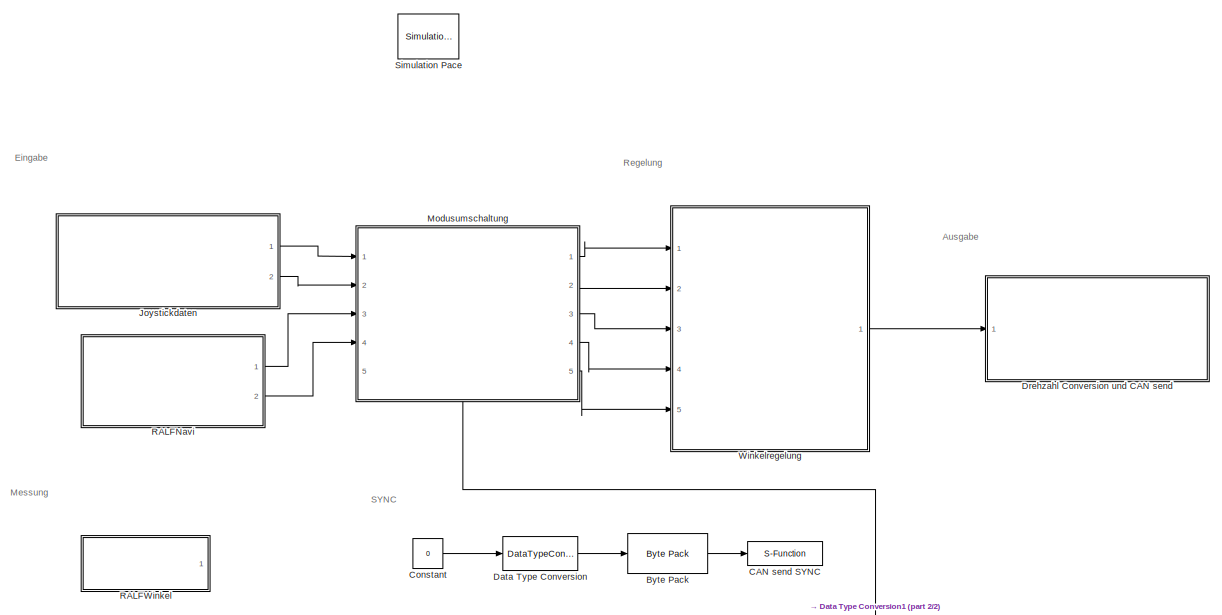
[diagram: root canvas - part 1/2, middle right region]
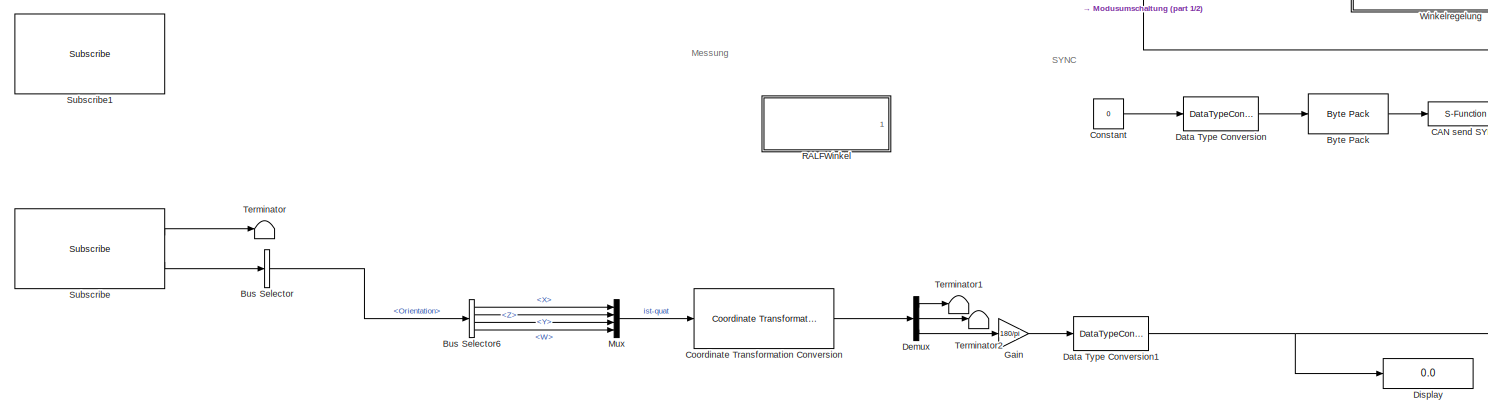
[diagram: root canvas - part 2/2, full width, bottom band]
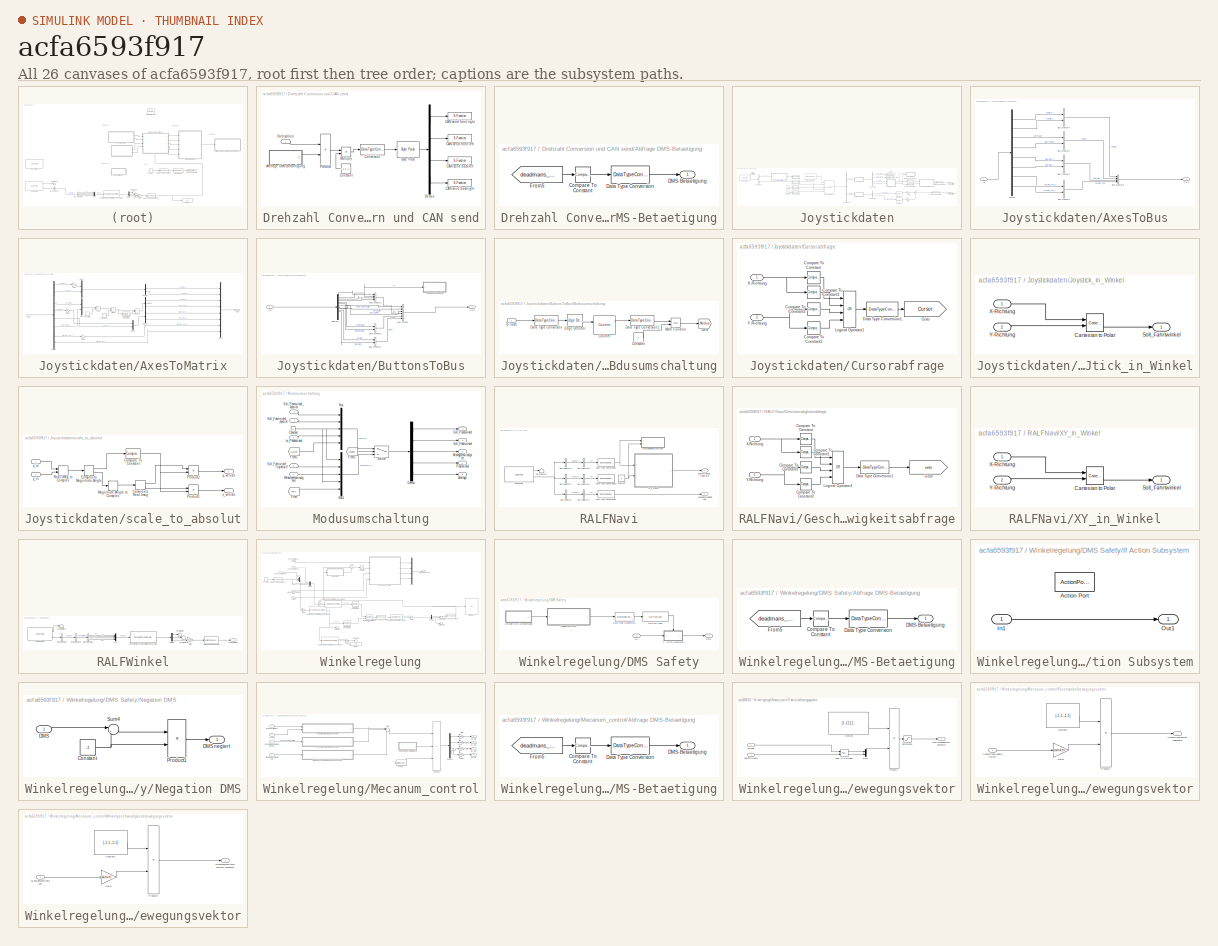
[diagram: thumbnail index - all 26 canvases of the model, root first then tree order]
MODEL slx_acfa6593f917
KIND model
CONFIG AbsTol = auto
CONFIG EnableMultiTasking = off
CONFIG FixedStep = 0.01
CONFIG InitFcn = init\n
CONFIG MaxStep = auto
CONFIG MinStep = auto
CONFIG RelTol = 1e-3
CONFIG SampleTimeConstraint = Unconstrained
CONFIG Solver = FixedStepAuto
CONFIG SolverName = FixedStepAuto
CONFIG StartTime = 0.0
CONFIG StopFcn = stop\n
CONFIG StopTime = inf
WORKSPACE source: mxarray member
WORKSPACE SL_ROS_VariableLengthArrays_MaxSizes: object (value not decoded)
BLOCK [BusSelector] Bus Selector
  OutputSignals = Pose.Pose.Orientation
  Ports = [1, 1]
BLOCK [BusSelector] Bus Selector6
  OutputSignals = X,Y,Z,W
  Ports = [1, 4]
BLOCK [Reference] Byte Pack  REF=etargetslib/Byte Pack
  Ports = [1, 1]
  SourceBlock = etargetslib/Byte Pack
  SourceProductBaseCode = ME
  SourceType = Byte pack
BLOCK [S-Function] CAN send SYNC
  EnableBusSupport = off
  FunctionName = CAN_send
  Parameters = Port,Identifier
  Ports = [1]
  SFcnIsStateOwnerBlock = off
  SFunctionDeploymentMode = off
  SFunctionModules = socketcan
BLOCK [Constant] Constant
  Value = 0
BLOCK [Reference] Coordinate Transformation Conversion  REF=robotcorelib/Coordinate Transformation Conversion
  Ports = [1, 1]
  SourceBlock = robotcorelib/Coordinate Transformation Conversion
  SourceProductBaseCode = NV,RO,RR
  SourceType = robotics.slcore.internal.block.CoordinateTransformationConversion
BLOCK [DataTypeConversion] Data Type Conversion
  OutDataTypeStr = int16
  RndMeth = Floor
  SaturateOnIntegerOverflow = off
BLOCK [DataTypeConversion] Data Type Conversion1
  OutDataTypeStr = single
  RndMeth = Floor
  SaturateOnIntegerOverflow = off
BLOCK [Demux] Demux
  Outputs = 3
  Ports = [1, 3]
BLOCK [Display] Display
  Decimation = 1
  Ports = [1]
BLOCK [SubSystem] Drehzahl Conversion und CAN send
  Ports = [1]
  RequestExecContextInheritance = off
BLOCK [SubSystem] Drehzahl Conversion und CAN send/Abfrage DMS-Betaetigung
  Ports = [0, 1]
  RequestExecContextInheritance = off
BLOCK [Reference] Drehzahl Conversion und CAN send/Abfrage DMS-Betaetigung/Compare To Constant  REF=simulink/Logic and Bit
Operations/Compare
To Constant
  Ports = [1, 1]
  SourceBlock = simulink/Logic and Bit\nOperations/Compare\nTo Constant
  SourceProductBaseCode = SL
  SourceType = Compare To Constant
BLOCK [Outport] Drehzahl Conversion und CAN send/Abfrage DMS-Betaetigung/DMS-Betaetigung 
  VectorParamsAs1DForOutWhenUnconnected = off
BLOCK [DataTypeConversion] Drehzahl Conversion und CAN send/Abfrage DMS-Betaetigung/Data Type Conversion
  OutDataTypeStr = single
  RndMeth = Floor
  SaturateOnIntegerOverflow = off
BLOCK [From] Drehzahl Conversion und CAN send/Abfrage DMS-Betaetigung/From5
  GotoTag = deadmans_switch
  TagVisibility = global
BLOCK [Reference] Drehzahl Conversion und CAN send/Byte Pack  REF=etargetslib/Byte Pack
  Ports = [1, 1]
  SourceBlock = etargetslib/Byte Pack
  SourceProductBaseCode = ME
  SourceType = Byte pack
BLOCK [S-Function] Drehzahl Conversion und CAN send/CAN send back left
  EnableBusSupport = off
  FunctionName = CAN_send
  Parameters = Port,Identifier
  Ports = [1]
  SFcnIsStateOwnerBlock = off
  SFunctionDeploymentMode = off
  SFunctionModules = socketcan
BLOCK [S-Function] Drehzahl Conversion und CAN send/CAN send back right
  EnableBusSupport = off
  FunctionName = CAN_send
  Parameters = Port,Identifier
  Ports = [1]
  SFcnIsStateOwnerBlock = off
  SFunctionDeploymentMode = off
  SFunctionModules = socketcan
BLOCK [S-Function] Drehzahl Conversion und CAN send/CAN send front left
  EnableBusSupport = off
  FunctionName = CAN_send
  Parameters = Port,Identifier
  Ports = [1]
  SFcnIsStateOwnerBlock = off
  SFunctionDeploymentMode = off
  SFunctionModules = socketcan
BLOCK [S-Function] Drehzahl Conversion und CAN send/CAN send front right
  EnableBusSupport = off
  FunctionName = CAN_send
  Parameters = Port,Identifier
  Ports = [1]
  SFcnIsStateOwnerBlock = off
  SFunctionDeploymentMode = off
  SFunctionModules = socketcan
BLOCK [Constant] Drehzahl Conversion und CAN send/Constant
  Value = [-1;1;-1;1]
BLOCK [DataTypeConversion] Drehzahl Conversion und CAN send/Conversion 
  OutDataTypeStr = int16
  RndMeth = Floor
  SaturateOnIntegerOverflow = off
BLOCK [Demux] Drehzahl Conversion und CAN send/Demux
  Ports = [1, 4]
BLOCK [Inport] Drehzahl Conversion und CAN send/Drehzahlen 
BLOCK [Product] Drehzahl Conversion und CAN send/Multiply
  Ports = [2, 1]
BLOCK [Product] Drehzahl Conversion und CAN send/Product
  Ports = [2, 1]
BLOCK [Gain] Gain
  Gain = 180/pi
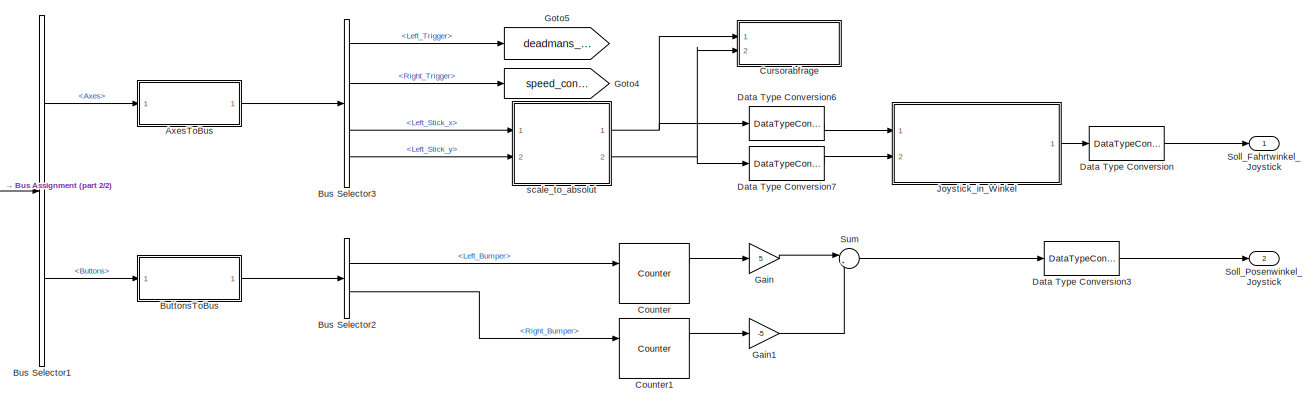
[diagram: Joystickdaten - part 1/2, right side, full height]
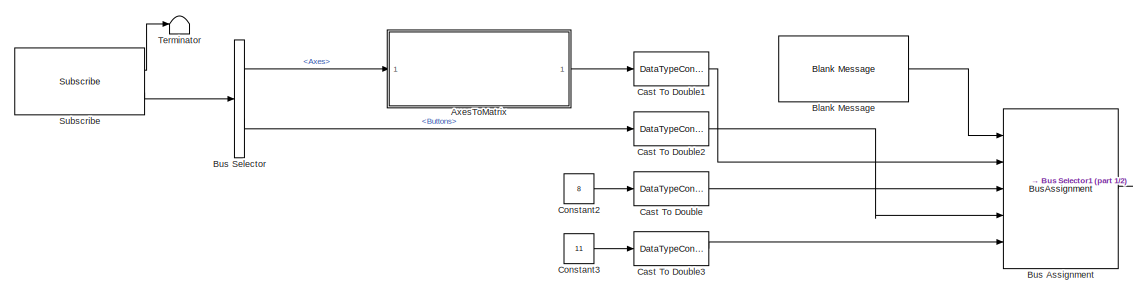
[diagram: Joystickdaten - part 2/2, middle left region]
BLOCK [SubSystem] Joystickdaten
  Ports = [0, 2]
  RequestExecContextInheritance = off
BLOCK [SubSystem] Joystickdaten/AxesToBus
  Ports = [1, 1]
  RequestExecContextInheritance = off
BLOCK [BusCreator] Joystickdaten/AxesToBus/Bus Creator4
  DisplayOption = bar
  InheritFromInputs = on
  Inputs = 2
  Ports = [2, 1]
BLOCK [BusCreator] Joystickdaten/AxesToBus/Bus Creator5
  DisplayOption = bar
  InheritFromInputs = on
  Inputs = 2
  Ports = [2, 1]
BLOCK [BusCreator] Joystickdaten/AxesToBus/Bus Creator6
  DisplayOption = bar
  InheritFromInputs = on
  Inputs = 2
  Ports = [2, 1]
BLOCK [BusCreator] Joystickdaten/AxesToBus/Bus Creator7
  DisplayOption = bar
  InheritFromInputs = on
  Inputs = 2
  Ports = [2, 1]
BLOCK [BusCreator] Joystickdaten/AxesToBus/Bus Creator8
  DisplayOption = bar
  InheritFromInputs = on
  Inputs = 4
  Ports = [4, 1]
BLOCK [Demux] Joystickdaten/AxesToBus/Demux
  Outputs = 8
  Ports = [1, 8]
BLOCK [Inport] Joystickdaten/AxesToBus/In1
BLOCK [Outport] Joystickdaten/AxesToBus/Out1
  VectorParamsAs1DForOutWhenUnconnected = off
BLOCK [SubSystem] Joystickdaten/AxesToMatrix
  Ports = [1, 1]
  RequestExecContextInheritance = off
BLOCK [Sum] Joystickdaten/AxesToMatrix/Add
  IconShape = rectangular
  Inputs = +-
  Ports = [2, 1]
BLOCK [Inport] Joystickdaten/AxesToMatrix/Axes
BLOCK [Reference] Joystickdaten/AxesToMatrix/Compare To Constant1  REF=simulink/Logic and Bit
Operations/Compare
To Constant
  Ports = [1, 1]
  SourceBlock = simulink/Logic and Bit\nOperations/Compare\nTo Constant
  SourceProductBaseCode = SL
  SourceType = Compare To Constant
BLOCK [Constant] Joystickdaten/AxesToMatrix/Constant
BLOCK [Constant] Joystickdaten/AxesToMatrix/Constant1
  Value = -2
BLOCK [Demux] Joystickdaten/AxesToMatrix/Demux
  Outputs = 8
  Ports = [1, 8]
BLOCK [Demux] Joystickdaten/AxesToMatrix/Demux2
  Outputs = 2
  Ports = [1, 2]
BLOCK [Demux] Joystickdaten/AxesToMatrix/Demux3
  Outputs = 2
  Ports = [1, 2]
BLOCK [Demux] Joystickdaten/AxesToMatrix/Demux4
  Outputs = 2
  Ports = [1, 2]
BLOCK [Product] Joystickdaten/AxesToMatrix/Divide
  Inputs = */
  Ports = [2, 1]
BLOCK [Gain] Joystickdaten/AxesToMatrix/Gain
  Gain = -1
BLOCK [Gain] Joystickdaten/AxesToMatrix/Gain1
  Gain = -1
BLOCK [Gain] Joystickdaten/AxesToMatrix/Gain2
  Gain = -1
BLOCK [Mux] Joystickdaten/AxesToMatrix/Mux
  DisplayOption = bar
  Inputs = 2
  Ports = [2, 1]
BLOCK [Mux] Joystickdaten/AxesToMatrix/Mux1
  DisplayOption = bar
  Inputs = 2
  Ports = [2, 1]
BLOCK [Mux] Joystickdaten/AxesToMatrix/Mux2
  DisplayOption = bar
  Inputs = 2
  Ports = [2, 1]
BLOCK [Mux] Joystickdaten/AxesToMatrix/Mux4
  DisplayOption = bar
  Inputs = 8
  Ports = [8, 1]
BLOCK [Outport] Joystickdaten/AxesToMatrix/Out3
  VectorParamsAs1DForOutWhenUnconnected = off
BLOCK [Product] Joystickdaten/AxesToMatrix/Product1
  OutDataTypeStr = single
  Ports = [2, 1]
BLOCK [Reference] Joystickdaten/Blank Message  REF=robotlib/Blank Message
  Ports = [0, 1]
  SourceBlock = robotlib/Blank Message
  SourceProductBaseCode = RR
  SourceType = ROS Blank Message
BLOCK [BusAssignment] Joystickdaten/Bus Assignment
  AssignedSignals = Axes,Axes_SL_Info.CurrentLength,Buttons,Buttons_SL_Info.CurrentLength
  Ports = [5, 1]
BLOCK [BusSelector] Joystickdaten/Bus Selector
  OutputSignals = Axes,Buttons
  Ports = [1, 2]
BLOCK [BusSelector] Joystickdaten/Bus Selector1
  OutputSignals = Axes,Buttons
  Ports = [1, 2]
BLOCK [BusSelector] Joystickdaten/Bus Selector2
  OutputSignals = Bumper.Left_Bumper,Bumper.Right_Bumper
  Ports = [1, 2]
BLOCK [BusSelector] Joystickdaten/Bus Selector3
  OutputSignals = Trigger.Left_Trigger,Trigger.Right_Trigger,Left_Stick.Left_Stick_x,Left_Stick.Left_Stick_y
  Ports = [1, 4]
BLOCK [SubSystem] Joystickdaten/ButtonsToBus
  Ports = [1, 1]
  RequestExecContextInheritance = off
BLOCK [BusCreator] Joystickdaten/ButtonsToBus/Bus Creator
  DisplayOption = bar
  InheritFromInputs = on
  Inputs = 6
  Ports = [6, 1]
BLOCK [BusCreator] Joystickdaten/ButtonsToBus/Bus Creator1
  DisplayOption = bar
  InheritFromInputs = on
  Inputs = 4
  Ports = [4, 1]
BLOCK [BusCreator] Joystickdaten/ButtonsToBus/Bus Creator2
  DisplayOption = bar
  InheritFromInputs = on
  Inputs = 2
  Ports = [2, 1]
BLOCK [BusCreator] Joystickdaten/ButtonsToBus/Bus Creator3
  DisplayOption = bar
  InheritFromInputs = on
  Inputs = 2
  Ports = [2, 1]
BLOCK [Demux] Joystickdaten/ButtonsToBus/Demux1
  Outputs = 15
  Ports = [1, 15]
BLOCK [Inport] Joystickdaten/ButtonsToBus/In1
BLOCK [SubSystem] Joystickdaten/ButtonsToBus/Modusumschaltung
  Ports = [1]
  RequestExecContextInheritance = off
BLOCK [Inport] Joystickdaten/ButtonsToBus/Modusumschaltung/B-Taste
BLOCK [Constant] Joystickdaten/ButtonsToBus/Modusumschaltung/Constant
  OutDataTypeStr = single
  Value = 2
BLOCK [Reference] Joystickdaten/ButtonsToBus/Modusumschaltung/Counter  REF=dspswit3/Counter
  Ports = [2, 2]
  SourceBlock = dspswit3/Counter
  SourceProductBaseCode = DS
  SourceType = Counter
BLOCK [DataTypeConversion] Joystickdaten/ButtonsToBus/Modusumschaltung/Data Type Conversion
  OutDataTypeStr = single
  RndMeth = Floor
  SaturateOnIntegerOverflow = off
BLOCK [DataTypeConversion] Joystickdaten/ButtonsToBus/Modusumschaltung/Data Type Conversion1
  OutDataTypeStr = single
  RndMeth = Floor
  SaturateOnIntegerOverflow = off
BLOCK [Reference] Joystickdaten/ButtonsToBus/Modusumschaltung/Edge Detector  REF=dspswit3/Edge
Detector
  Ports = [1, 1]
  SourceBlock = dspswit3/Edge\nDetector
  SourceProductBaseCode = DS
  SourceType = Edge Detector
  UserDataPersistent = on
BLOCK [Goto] Joystickdaten/ButtonsToBus/Modusumschaltung/Goto
  GotoTag = Modus
  TagVisibility = global
BLOCK [Math] Joystickdaten/ButtonsToBus/Modusumschaltung/Math Function
  Operator = mod
  Ports = [2, 1]
  SignedPower = on
BLOCK [Outport] Joystickdaten/ButtonsToBus/Out1
  VectorParamsAs1DForOutWhenUnconnected = off
BLOCK [DataTypeConversion] Joystickdaten/Cast To Double
  OutDataTypeStr = uint32
  RndMeth = Floor
  SaturateOnIntegerOverflow = off
BLOCK [DataTypeConversion] Joystickdaten/Cast To Double1
  OutDataTypeStr = single
  RndMeth = Floor
  SaturateOnIntegerOverflow = off
BLOCK [DataTypeConversion] Joystickdaten/Cast To Double2
  OutDataTypeStr = int32
  RndMeth = Floor
  SaturateOnIntegerOverflow = off
BLOCK [DataTypeConversion] Joystickdaten/Cast To Double3
  OutDataTypeStr = uint32
  RndMeth = Floor
  SaturateOnIntegerOverflow = off
BLOCK [Constant] Joystickdaten/Constant2
  Value = 8
BLOCK [Constant] Joystickdaten/Constant3
  Value = 11
BLOCK [Reference] Joystickdaten/Counter  REF=dspswit3/Counter
  Ports = [2, 2]
  SourceBlock = dspswit3/Counter
  SourceProductBaseCode = DS
  SourceType = Counter
BLOCK [Reference] Joystickdaten/Counter1  REF=dspswit3/Counter
  Ports = [2, 2]
  SourceBlock = dspswit3/Counter
  SourceProductBaseCode = DS
  SourceType = Counter
BLOCK [SubSystem] Joystickdaten/Cursorabfrage
  Ports = [2]
  RequestExecContextInheritance = off
BLOCK [Reference] Joystickdaten/Cursorabfrage/Compare To Constant  REF=simulink/Logic and Bit
Operations/Compare
To Constant
  Ports = [1, 1]
  SourceBlock = simulink/Logic and Bit\nOperations/Compare\nTo Constant
  SourceProductBaseCode = SL
  SourceType = Compare To Constant
BLOCK [Reference] Joystickdaten/Cursorabfrage/Compare To Constant1  REF=simulink/Logic and Bit
Operations/Compare
To Constant
  Ports = [1, 1]
  SourceBlock = simulink/Logic and Bit\nOperations/Compare\nTo Constant
  SourceProductBaseCode = SL
  SourceType = Compare To Constant
BLOCK [Reference] Joystickdaten/Cursorabfrage/Compare To Constant2  REF=simulink/Logic and Bit
Operations/Compare
To Constant
  Ports = [1, 1]
  SourceBlock = simulink/Logic and Bit\nOperations/Compare\nTo Constant
  SourceProductBaseCode = SL
  SourceType = Compare To Constant
BLOCK [Reference] Joystickdaten/Cursorabfrage/Compare To Constant3  REF=simulink/Logic and Bit
Operations/Compare
To Constant
  Ports = [1, 1]
  SourceBlock = simulink/Logic and Bit\nOperations/Compare\nTo Constant
  SourceProductBaseCode = SL
  SourceType = Compare To Constant
BLOCK [DataTypeConversion] Joystickdaten/Cursorabfrage/Data Type Conversion1
  OutDataTypeStr = single
  RndMeth = Floor
  SaturateOnIntegerOverflow = off
BLOCK [Goto] Joystickdaten/Cursorabfrage/Goto
  GotoTag = Cursor
  TagVisibility = global
BLOCK [Logic] Joystickdaten/Cursorabfrage/Logical Operator1
  AllPortsSameDT = off
  Inputs = 4
  Operator = OR
  OutDataTypeStr = boolean
  Ports = [4, 1]
BLOCK [Inport] Joystickdaten/Cursorabfrage/X-Richtung
BLOCK [Inport] Joystickdaten/Cursorabfrage/Y-Richtung
  Port = 2
BLOCK [DataTypeConversion] Joystickdaten/Data Type Conversion
  OutDataTypeStr = single
  RndMeth = Floor
  SaturateOnIntegerOverflow = off
BLOCK [DataTypeConversion] Joystickdaten/Data Type Conversion3
  OutDataTypeStr = single
  RndMeth = Floor
  SaturateOnIntegerOverflow = off
BLOCK [DataTypeConversion] Joystickdaten/Data Type Conversion6
  OutDataTypeStr = double
  RndMeth = Floor
  SaturateOnIntegerOverflow = off
BLOCK [DataTypeConversion] Joystickdaten/Data Type Conversion7
  OutDataTypeStr = double
  RndMeth = Floor
  SaturateOnIntegerOverflow = off
BLOCK [Gain] Joystickdaten/Gain
  Gain = 5
BLOCK [Gain] Joystickdaten/Gain1
  Gain = -5
BLOCK [Goto] Joystickdaten/Goto4
  GotoTag = speed_control
  TagVisibility = global
BLOCK [Goto] Joystickdaten/Goto5
  GotoTag = deadmans_switch
  TagVisibility = global
BLOCK [SubSystem] Joystickdaten/Joystick_in_Winkel
  Ports = [2, 1]
  RequestExecContextInheritance = off
BLOCK [Reference] Joystickdaten/Joystick_in_Winkel/Cartesian to Polar  REF=simulink_extras/Transformations/Cartesian to
Polar
  Ports = [2, 2]
  SourceBlock = simulink_extras/Transformations/Cartesian to\nPolar
  SourceProductBaseCode = SL
  SourceType = Cart2Polar
BLOCK [Outport] Joystickdaten/Joystick_in_Winkel/Soll_Fahrtwinkel
  VectorParamsAs1DForOutWhenUnconnected = off
BLOCK [Inport] Joystickdaten/Joystick_in_Winkel/X-Richtung
BLOCK [Inport] Joystickdaten/Joystick_in_Winkel/Y-Richtung
  Port = 2
BLOCK [Outport] Joystickdaten/Soll_Fahrtwinkel_Joystick
  VectorParamsAs1DForOutWhenUnconnected = off
BLOCK [Outport] Joystickdaten/Soll_Posenwinkel_Joystick
  Port = 2
  VectorParamsAs1DForOutWhenUnconnected = off
BLOCK [Reference] Joystickdaten/Subscribe  REF=robotlib/Subscribe
  Ports = [0, 2]
  SourceBlock = robotlib/Subscribe
  SourceProductBaseCode = RR
  SourceType = ROS Subscribe
BLOCK [Sum] Joystickdaten/Sum
  Inputs = |++
  Ports = [2, 1]
BLOCK [Terminator] Joystickdaten/Terminator
BLOCK [SubSystem] Joystickdaten/scale_to_absolut
  Ports = [2, 2]
  RequestExecContextInheritance = off
BLOCK [Reference] Joystickdaten/scale_to_absolut/Compare To Constant  REF=simulink/Logic and Bit
Operations/Compare
To Constant
  Ports = [1, 1]
  SourceBlock = simulink/Logic and Bit\nOperations/Compare\nTo Constant
  SourceProductBaseCode = SL
  SourceType = Compare To Constant
BLOCK [ComplexToMagnitudeAngle] Joystickdaten/scale_to_absolut/Complex to Magnitude-Angle
  Ports = [1, 2]
BLOCK [ComplexToRealImag] Joystickdaten/scale_to_absolut/Complex to Real-Imag
  Ports = [1, 2]
BLOCK [MagnitudeAngleToComplex] Joystickdaten/scale_to_absolut/Magnitude-Angle to Complex
  ConstantPart = 1
  Input = Angle
  Ports = [1, 1]
BLOCK [Product] Joystickdaten/scale_to_absolut/Product1
  Ports = [2, 1]
BLOCK [Product] Joystickdaten/scale_to_absolut/Product2
  Ports = [2, 1]
BLOCK [RealImagToComplex] Joystickdaten/scale_to_absolut/Real-Imag to Complex
  Ports = [2, 1]
BLOCK [Inport] Joystickdaten/scale_to_absolut/x_in
BLOCK [Outport] Joystickdaten/scale_to_absolut/x_vehicle
  VectorParamsAs1DForOutWhenUnconnected = off
BLOCK [Inport] Joystickdaten/scale_to_absolut/y_in
  Port = 2
BLOCK [Outport] Joystickdaten/scale_to_absolut/y_vehicle
  Port = 2
  VectorParamsAs1DForOutWhenUnconnected = off
BLOCK [SubSystem] Modusumschaltung
  PortSchema = {"entries":[{"content":{"sides":[{"content":{"connectorIds":["In1","In2","In3","In4"]},"type":"ConnectorPlacement.EquallySpacedRectSide","uuid":"4e6e5472-925b-44c8-a721-581e406655e4"},{"content":{"connectorIds":["Out1","Out2","Out3","Out4","Out5"],"side":"RIGHT"},"type":"ConnectorPlacement.EquallySpacedRectSide","uuid":"8f69ce23-dada-4a8a-8f27-31ddbd1227c0"},{"content":{"connectorIds":[],"side":"T...<+437ch>
  Ports = [5, 5]
  RequestExecContextInheritance = off
BLOCK [Outport] Modusumschaltung/Abfrage
  Port = 5
  VectorParamsAs1DForOutWhenUnconnected = off
BLOCK [Constant] Modusumschaltung/Constant
  OutDataTypeStr = single
  Value = 0
BLOCK [Demux] Modusumschaltung/Demux
  Outputs = 5
  Ports = [1, 5]
BLOCK [From] Modusumschaltung/From
  GotoTag = velo
  TagVisibility = global
BLOCK [From] Modusumschaltung/From1
  GotoTag = Cursor
  TagVisibility = global
BLOCK [From] Modusumschaltung/From2
  GotoTag = Modus
  TagVisibility = global
BLOCK [Inport] Modusumschaltung/Ist_Posenwinkel
  Port = 5
BLOCK [Mux] Modusumschaltung/Mux
  DisplayOption = bar
  Inputs = 5
  Ports = [5, 1]
BLOCK [Mux] Modusumschaltung/Mux1
  DisplayOption = bar
  Inputs = 5
  Ports = [5, 1]
BLOCK [Outport] Modusumschaltung/Posenwinkel
  Port = 4
  VectorParamsAs1DForOutWhenUnconnected = off
BLOCK [Outport] Modusumschaltung/Soll_Fahrtwinkel
  Port = 2
  VectorParamsAs1DForOutWhenUnconnected = off
BLOCK [Inport] Modusumschaltung/Soll_Fahrtwinkel_Joystick
BLOCK [Inport] Modusumschaltung/Soll_Fahrtwinkel_Trajektorie
  Port = 3
BLOCK [Outport] Modusumschaltung/Soll_Posenwinkel
  VectorParamsAs1DForOutWhenUnconnected = off
BLOCK [Inport] Modusumschaltung/Soll_Posenwinkel_Joystick
  Port = 2
BLOCK [Switch] Modusumschaltung/Switch
  Criteria = u2 > Threshold
  InputSameDT = off
  SaturateOnIntegerOverflow = off
BLOCK [Outport] Modusumschaltung/WInkegeschwindigkeit
  Port = 3
  VectorParamsAs1DForOutWhenUnconnected = off
BLOCK [Inport] Modusumschaltung/WInkelgeschwindigkeit 
  Port = 4
BLOCK [Mux] Mux
  DisplayOption = bar
  Ports = [4, 1]
BLOCK [SubSystem] RALFNavi
  Ports = [0, 2]
  RequestExecContextInheritance = off
BLOCK [BusSelector] RALFNavi/Bus Selector
  OutputSignals = Angular
  Ports = [1, 1]
BLOCK [BusSelector] RALFNavi/Bus Selector1
  OutputSignals = Z
  Ports = [1, 1]
BLOCK [BusSelector] RALFNavi/Bus Selector2
  OutputSignals = Linear
  Ports = [1, 1]
BLOCK [BusSelector] RALFNavi/Bus Selector3
  OutputSignals = X
  Ports = [1, 1]
BLOCK [BusSelector] RALFNavi/Bus Selector7
  OutputSignals = Linear
  Ports = [1, 1]
BLOCK [BusSelector] RALFNavi/Bus Selector8
  OutputSignals = X
  Ports = [1, 1]
BLOCK [Constant] RALFNavi/Constant
  OutDataTypeStr = single
  Value = 0
BLOCK [DataTypeConversion] RALFNavi/Data Type Conversion1
  OutDataTypeStr = single
  RndMeth = Floor
  SaturateOnIntegerOverflow = off
BLOCK [DataTypeConversion] RALFNavi/Data Type Conversion2
  OutDataTypeStr = single
  RndMeth = Floor
  SaturateOnIntegerOverflow = off
BLOCK [DataTypeConversion] RALFNavi/Data Type Conversion3
  OutDataTypeStr = single
  RndMeth = Floor
  SaturateOnIntegerOverflow = off
BLOCK [SubSystem] RALFNavi/Geschwindigkeitsabfrage
  Ports = [2]
  RequestExecContextInheritance = off
BLOCK [Reference] RALFNavi/Geschwindigkeitsabfrage/Compare To Constant  REF=simulink/Logic and Bit
Operations/Compare
To Constant
  Ports = [1, 1]
  SourceBlock = simulink/Logic and Bit\nOperations/Compare\nTo Constant
  SourceProductBaseCode = SL
  SourceType = Compare To Constant
BLOCK [Reference] RALFNavi/Geschwindigkeitsabfrage/Compare To Constant1  REF=simulink/Logic and Bit
Operations/Compare
To Constant
  Ports = [1, 1]
  SourceBlock = simulink/Logic and Bit\nOperations/Compare\nTo Constant
  SourceProductBaseCode = SL
  SourceType = Compare To Constant
BLOCK [Reference] RALFNavi/Geschwindigkeitsabfrage/Compare To Constant2  REF=simulink/Logic and Bit
Operations/Compare
To Constant
  Ports = [1, 1]
  SourceBlock = simulink/Logic and Bit\nOperations/Compare\nTo Constant
  SourceProductBaseCode = SL
  SourceType = Compare To Constant
BLOCK [Reference] RALFNavi/Geschwindigkeitsabfrage/Compare To Constant3  REF=simulink/Logic and Bit
Operations/Compare
To Constant
  Ports = [1, 1]
  SourceBlock = simulink/Logic and Bit\nOperations/Compare\nTo Constant
  SourceProductBaseCode = SL
  SourceType = Compare To Constant
BLOCK [DataTypeConversion] RALFNavi/Geschwindigkeitsabfrage/Data Type Conversion1
  OutDataTypeStr = single
  RndMeth = Floor
  SaturateOnIntegerOverflow = off
BLOCK [Goto] RALFNavi/Geschwindigkeitsabfrage/Goto
  GotoTag = velo
  TagVisibility = global
BLOCK [Logic] RALFNavi/Geschwindigkeitsabfrage/Logical Operator1
  AllPortsSameDT = off
  Inputs = 4
  Operator = OR
  OutDataTypeStr = boolean
  Ports = [4, 1]
BLOCK [Inport] RALFNavi/Geschwindigkeitsabfrage/X-Richtung
BLOCK [Inport] RALFNavi/Geschwindigkeitsabfrage/Y-Richtung
  Port = 2
BLOCK [Outport] RALFNavi/Soll_Fahrtwinkel_Trajektorie
  VectorParamsAs1DForOutWhenUnconnected = off
BLOCK [Reference] RALFNavi/Subscribe  REF=robotlib/Subscribe
  Ports = [0, 2]
  SourceBlock = robotlib/Subscribe
  SourceProductBaseCode = RR
  SourceType = ROS Subscribe
BLOCK [Terminator] RALFNavi/Terminator3
BLOCK [Outport] RALFNavi/Winkelgeschwindigkeit 
  Port = 2
  VectorParamsAs1DForOutWhenUnconnected = off
BLOCK [SubSystem] RALFNavi/XY_in_Winkel
  Ports = [2, 1]
  RequestExecContextInheritance = off
BLOCK [Reference] RALFNavi/XY_in_Winkel/Cartesian to Polar  REF=simulink_extras/Transformations/Cartesian to
Polar
  Ports = [2, 2]
  SourceBlock = simulink_extras/Transformations/Cartesian to\nPolar
  SourceProductBaseCode = SL
  SourceType = Cart2Polar
BLOCK [Outport] RALFNavi/XY_in_Winkel/Soll_Fahrtwinkel
  VectorParamsAs1DForOutWhenUnconnected = off
BLOCK [Inport] RALFNavi/XY_in_Winkel/X-Richtung
BLOCK [Inport] RALFNavi/XY_in_Winkel/Y-Richtung
  Port = 2
BLOCK [SubSystem] RALFWinkel
  Commented = on
  Ports = [0, 1]
  RequestExecContextInheritance = off
BLOCK [BusSelector] RALFWinkel/Bus Selector4
  OutputSignals = Pose
  Ports = [1, 1]
BLOCK [BusSelector] RALFWinkel/Bus Selector5
  OutputSignals = Orientation
  Ports = [1, 1]
BLOCK [BusSelector] RALFWinkel/Bus Selector6
  OutputSignals = X,Y,Z,W
  Ports = [1, 4]
BLOCK [Reference] RALFWinkel/Coordinate Transformation Conversion  REF=robotcorelib/Coordinate Transformation Conversion
  Ports = [1, 1]
  SourceBlock = robotcorelib/Coordinate Transformation Conversion
  SourceProductBaseCode = NV,RO,RR
  SourceType = robotics.slcore.internal.block.CoordinateTransformationConversion
BLOCK [DataTypeConversion] RALFWinkel/Data Type Conversion
  OutDataTypeStr = single
  RndMeth = Floor
  SaturateOnIntegerOverflow = off
BLOCK [Demux] RALFWinkel/Demux
  Outputs = 3
  Ports = [1, 3]
BLOCK [Gain] RALFWinkel/Gain
  Gain = 180/pi
BLOCK [Mux] RALFWinkel/Mux
  DisplayOption = bar
  Ports = [4, 1]
BLOCK [Outport] RALFWinkel/Posenwinkel
  VectorParamsAs1DForOutWhenUnconnected = off
BLOCK [Reference] RALFWinkel/Subscribe1  REF=robotlib/Subscribe
  Ports = [0, 2]
  SourceBlock = robotlib/Subscribe
  SourceProductBaseCode = RR
  SourceType = ROS Subscribe
BLOCK [Terminator] RALFWinkel/Terminator
BLOCK [Terminator] RALFWinkel/Terminator1
BLOCK [Terminator] RALFWinkel/Terminator2
BLOCK [Reference] Simulation Pace  REF=aerolibanimutils/Simulation Pace
  AttributesFormatString = %<SleepMode>\n%<SimulationPace> sec/sec
  Ports = []
  SourceBlock = aerolibanimutils/Simulation Pace
  SourceProductBaseCode = AE
  SourceType = Simulation Pace
BLOCK [Reference] Subscribe  REF=robotlib/Subscribe
  Ports = [0, 2]
  SourceBlock = robotlib/Subscribe
  SourceProductBaseCode = RR
  SourceType = ROS Subscribe
BLOCK [Reference] Subscribe1  REF=robotlib/Subscribe
  Commented = on
  Ports = [0, 2]
  SourceBlock = robotlib/Subscribe
  SourceProductBaseCode = RR
  SourceType = ROS Subscribe
BLOCK [Terminator] Terminator
BLOCK [Terminator] Terminator1
BLOCK [Terminator] Terminator2
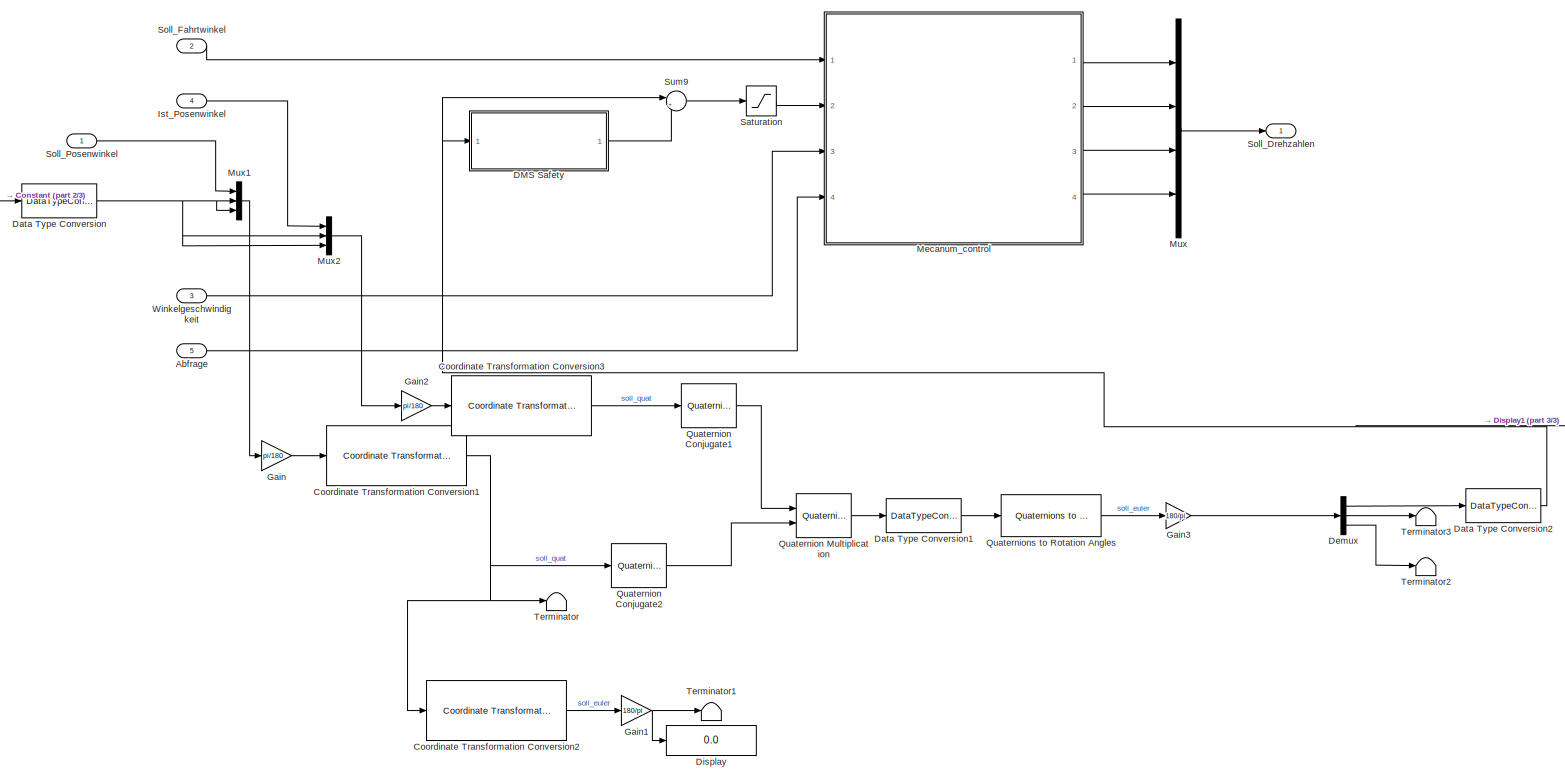
[diagram: Winkelregelung - part 1/3, most of the canvas]
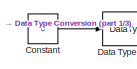
[diagram: Winkelregelung - part 2/3, top left region]
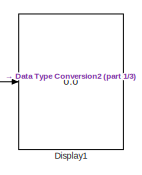
[diagram: Winkelregelung - part 3/3, middle right region]
BLOCK [SubSystem] Winkelregelung
  Ports = [5, 1]
  RequestExecContextInheritance = off
BLOCK [Inport] Winkelregelung/Abfrage 
  Port = 5
BLOCK [Constant] Winkelregelung/Constant
  Value = 0
BLOCK [Reference] Winkelregelung/Coordinate Transformation Conversion1  REF=robotcorelib/Coordinate Transformation Conversion
  Ports = [1, 1]
  SourceBlock = robotcorelib/Coordinate Transformation Conversion
  SourceProductBaseCode = NV,RO,RR
  SourceType = robotics.slcore.internal.block.CoordinateTransformationConversion
BLOCK [Reference] Winkelregelung/Coordinate Transformation Conversion2  REF=robotcorelib/Coordinate Transformation Conversion
  Ports = [1, 1]
  SourceBlock = robotcorelib/Coordinate Transformation Conversion
  SourceProductBaseCode = NV,RO,RR
  SourceType = robotics.slcore.internal.block.CoordinateTransformationConversion
BLOCK [Reference] Winkelregelung/Coordinate Transformation Conversion3  REF=robotcorelib/Coordinate Transformation Conversion
  Ports = [1, 1]
  SourceBlock = robotcorelib/Coordinate Transformation Conversion
  SourceProductBaseCode = NV,RO,RR
  SourceType = robotics.slcore.internal.block.CoordinateTransformationConversion
BLOCK [SubSystem] Winkelregelung/DMS Safety
  Ports = [1, 1]
  RequestExecContextInheritance = off
  ShowPortLabels = none
BLOCK [SubSystem] Winkelregelung/DMS Safety/Abfrage DMS-Betaetigung
  Ports = [0, 1]
  RequestExecContextInheritance = off
BLOCK [Reference] Winkelregelung/DMS Safety/Abfrage DMS-Betaetigung/Compare To Constant  REF=simulink/Logic and Bit
Operations/Compare
To Constant
  Ports = [1, 1]
  SourceBlock = simulink/Logic and Bit\nOperations/Compare\nTo Constant
  SourceProductBaseCode = SL
  SourceType = Compare To Constant
BLOCK [Outport] Winkelregelung/DMS Safety/Abfrage DMS-Betaetigung/DMS-Betaetigung 
  VectorParamsAs1DForOutWhenUnconnected = off
BLOCK [DataTypeConversion] Winkelregelung/DMS Safety/Abfrage DMS-Betaetigung/Data Type Conversion
  OutDataTypeStr = single
  RndMeth = Floor
  SaturateOnIntegerOverflow = off
BLOCK [From] Winkelregelung/DMS Safety/Abfrage DMS-Betaetigung/From5
  GotoTag = deadmans_switch
  TagVisibility = global
BLOCK [DataTypeConversion] Winkelregelung/DMS Safety/Data Type Conversion
  OutDataTypeStr = single
  RndMeth = Floor
  SaturateOnIntegerOverflow = off
BLOCK [SubSystem] Winkelregelung/DMS Safety/If Action Subsystem
  Ports = [1, 1, 0, 0, 0, 0, 0, 1]
  RequestExecContextInheritance = off
  TreatAsAtomicUnit = on
BLOCK [ActionPort] Winkelregelung/DMS Safety/If Action Subsystem/Action Port
  ActionPortLabel = case [ 1 ]:
BLOCK [Inport] Winkelregelung/DMS Safety/If Action Subsystem/In1
BLOCK [Outport] Winkelregelung/DMS Safety/If Action Subsystem/Out1
  VectorParamsAs1DForOutWhenUnconnected = off
BLOCK [Inport] Winkelregelung/DMS Safety/In1
BLOCK [SubSystem] Winkelregelung/DMS Safety/Negation DMS
  Ports = [1, 1]
  RequestExecContextInheritance = off
BLOCK [Constant] Winkelregelung/DMS Safety/Negation DMS/Constant
  Value = -1
BLOCK [Inport] Winkelregelung/DMS Safety/Negation DMS/DMS
BLOCK [Outport] Winkelregelung/DMS Safety/Negation DMS/DMS negiert
  VectorParamsAs1DForOutWhenUnconnected = off
BLOCK [Product] Winkelregelung/DMS Safety/Negation DMS/Product1
  Ports = [2, 1]
BLOCK [Sum] Winkelregelung/DMS Safety/Negation DMS/Sum4
  Inputs = |++
  Ports = [2, 1]
BLOCK [Outport] Winkelregelung/DMS Safety/Out1
  VectorParamsAs1DForOutWhenUnconnected = off
BLOCK [SwitchCase] Winkelregelung/DMS Safety/Switch Case
  Ports = [1, 2]
BLOCK [DataTypeConversion] Winkelregelung/Data Type Conversion
  OutDataTypeStr = single
  RndMeth = Floor
  SaturateOnIntegerOverflow = off
BLOCK [DataTypeConversion] Winkelregelung/Data Type Conversion1
  OutDataTypeStr = double
  RndMeth = Floor
  SaturateOnIntegerOverflow = off
BLOCK [DataTypeConversion] Winkelregelung/Data Type Conversion2
  OutDataTypeStr = single
  RndMeth = Floor
  SaturateOnIntegerOverflow = off
BLOCK [Demux] Winkelregelung/Demux
  Outputs = 3
  Ports = [1, 3]
BLOCK [Display] Winkelregelung/Display
  Decimation = 1
  Ports = [1]
BLOCK [Display] Winkelregelung/Display1
  Decimation = 1
  Ports = [1]
BLOCK [Gain] Winkelregelung/Gain
  Gain = pi/180
BLOCK [Gain] Winkelregelung/Gain1
  Gain = 180/pi
BLOCK [Gain] Winkelregelung/Gain2
  Gain = pi/180
BLOCK [Gain] Winkelregelung/Gain3
  Gain = 180/pi
BLOCK [Inport] Winkelregelung/Ist_Posenwinkel
  Port = 4
BLOCK [SubSystem] Winkelregelung/Mecanum_control
  Ports = [4, 4]
  RequestExecContextInheritance = off
BLOCK [Inport] Winkelregelung/Mecanum_control/Abfrage
  OutDataTypeStr = single
  Port = 4
BLOCK [SubSystem] Winkelregelung/Mecanum_control/Abfrage DMS-Betaetigung
  Ports = [0, 1]
  RequestExecContextInheritance = off
BLOCK [Reference] Winkelregelung/Mecanum_control/Abfrage DMS-Betaetigung/Compare To Constant  REF=simulink/Logic and Bit
Operations/Compare
To Constant
  Ports = [1, 1]
  SourceBlock = simulink/Logic and Bit\nOperations/Compare\nTo Constant
  SourceProductBaseCode = SL
  SourceType = Compare To Constant
BLOCK [Outport] Winkelregelung/Mecanum_control/Abfrage DMS-Betaetigung/DMS-Betaetigung 
  VectorParamsAs1DForOutWhenUnconnected = off
BLOCK [DataTypeConversion] Winkelregelung/Mecanum_control/Abfrage DMS-Betaetigung/Data Type Conversion
  OutDataTypeStr = single
  RndMeth = Floor
  SaturateOnIntegerOverflow = off
BLOCK [From] Winkelregelung/Mecanum_control/Abfrage DMS-Betaetigung/From5
  GotoTag = deadmans_switch
  TagVisibility = global
BLOCK [Outport] Winkelregelung/Mecanum_control/BL_Soll
  Port = 3
  VectorParamsAs1DForOutWhenUnconnected = off
BLOCK [Outport] Winkelregelung/Mecanum_control/BR_Soll
  Port = 4
  VectorParamsAs1DForOutWhenUnconnected = off
BLOCK [Demux] Winkelregelung/Mecanum_control/Demux2
  Ports = [1, 4]
BLOCK [Outport] Winkelregelung/Mecanum_control/FL_Soll
  Port = 2
  VectorParamsAs1DForOutWhenUnconnected = off
BLOCK [Outport] Winkelregelung/Mecanum_control/FR_Soll
  VectorParamsAs1DForOutWhenUnconnected = off
BLOCK [SubSystem] Winkelregelung/Mecanum_control/Fahrtwinkelbewegungsvektor
  Ports = [2, 1]
  RequestExecContextInheritance = off
BLOCK [Inport] Winkelregelung/Mecanum_control/Fahrtwinkelbewegungsvektor/Abfrage
  Port = 2
BLOCK [Constant] Winkelregelung/Mecanum_control/Fahrtwinkelbewegungsvektor/Constant
  OutDataTypeStr = single
  Value = [1 -1;1 1;1 1;1 -1]
BLOCK [Outport] Winkelregelung/Mecanum_control/Fahrtwinkelbewegungsvektor/Fahrtwinkelbewegungsvektor
  VectorParamsAs1DForOutWhenUnconnected = off
BLOCK [Mux] Winkelregelung/Mecanum_control/Fahrtwinkelbewegungsvektor/Mux1
  DisplayOption = bar
  Inputs = 2
  Ports = [2, 1]
BLOCK [Reference] Winkelregelung/Mecanum_control/Fahrtwinkelbewegungsvektor/Polar to Cartesian  REF=simulink_extras/Transformations/Polar to
Cartesian
  Ports = [2, 2]
  SourceBlock = simulink_extras/Transformations/Polar to\nCartesian
  SourceProductBaseCode = SL
  SourceType = Polar2Cart
BLOCK [Product] Winkelregelung/Mecanum_control/Fahrtwinkelbewegungsvektor/Product1
  Multiplication = Matrix(*)
  Ports = [2, 1]
BLOCK [Saturate] Winkelregelung/Mecanum_control/Fahrtwinkelbewegungsvektor/Saturation3
  LowerLimit = -1
  UpperLimit = 1
BLOCK [Inport] Winkelregelung/Mecanum_control/Fahrtwinkelbewegungsvektor/Soll_Fahrtwinkel
BLOCK [From] Winkelregelung/Mecanum_control/From
  GotoTag = speed_control
  TagVisibility = global
BLOCK [Gain] Winkelregelung/Mecanum_control/Gain
  Gain = nmax
  OutDataTypeStr = double
BLOCK [Gain] Winkelregelung/Mecanum_control/Gain1
  Gain = nmax
  OutDataTypeStr = double
BLOCK [Gain] Winkelregelung/Mecanum_control/Gain2
  Gain = -nmax
  OutDataTypeStr = double
BLOCK [Gain] Winkelregelung/Mecanum_control/Gain3
  Gain = -nmax
  OutDataTypeStr = double
BLOCK [SubSystem] Winkelregelung/Mecanum_control/Posenwinkelbewegungsvektor
  Ports = [1, 1]
  RequestExecContextInheritance = off
BLOCK [Constant] Winkelregelung/Mecanum_control/Posenwinkelbewegungsvektor/Constant1
  OutDataTypeStr = single
  Value = [-1;1;-1;1]
BLOCK [Gain] Winkelregelung/Mecanum_control/Posenwinkelbewegungsvektor/Gain4
  Gain = pwinkel
BLOCK [Outport] Winkelregelung/Mecanum_control/Posenwinkelbewegungsvektor/Posenwinkelbewegungsvektor 
  VectorParamsAs1DForOutWhenUnconnected = off
BLOCK [Inport] Winkelregelung/Mecanum_control/Posenwinkelbewegungsvektor/Posenwinkelregeldifferenz
BLOCK [Product] Winkelregelung/Mecanum_control/Posenwinkelbewegungsvektor/Product2
  Multiplication = Matrix(*)
  Ports = [2, 1]
BLOCK [Inport] Winkelregelung/Mecanum_control/Posenwinkelregeldifferenz
  OutDataTypeStr = single
  Port = 2
BLOCK [Product] Winkelregelung/Mecanum_control/Product
  Inputs = 3
  OutDataTypeStr = single
  Ports = [3, 1]
BLOCK [Inport] Winkelregelung/Mecanum_control/Soll_Fahrtwinkel
  OutDataTypeStr = single
BLOCK [Sum] Winkelregelung/Mecanum_control/Sum
  Inputs = |+++
  Ports = [3, 1]
BLOCK [SubSystem] Winkelregelung/Mecanum_control/WInkelgeschwindigkeitsbewegungsvektor
  Ports = [1, 1]
  RequestExecContextInheritance = off
BLOCK [Constant] Winkelregelung/Mecanum_control/WInkelgeschwindigkeitsbewegungsvektor/Constant1
  OutDataTypeStr = single
  Value = [-1;1;-1;1]
BLOCK [Gain] Winkelregelung/Mecanum_control/WInkelgeschwindigkeitsbewegungsvektor/Gain4
  Gain = pwinkel_vel
BLOCK [Product] Winkelregelung/Mecanum_control/WInkelgeschwindigkeitsbewegungsvektor/Product2
  Multiplication = Matrix(*)
  Ports = [2, 1]
BLOCK [Inport] Winkelregelung/Mecanum_control/WInkelgeschwindigkeitsbewegungsvektor/WInkelgeschwindigkeit
BLOCK [Outport] Winkelregelung/Mecanum_control/WInkelgeschwindigkeitsbewegungsvektor/WInkelgeschwindigkeitsbewegungsvektor 
  VectorParamsAs1DForOutWhenUnconnected = off
BLOCK [Inport] Winkelregelung/Mecanum_control/Winkelgeschwindigkeit
  OutDataTypeStr = single
  Port = 3
BLOCK [Mux] Winkelregelung/Mux
  DisplayOption = bar
  Ports = [4, 1]
BLOCK [Mux] Winkelregelung/Mux1
  DisplayOption = bar
  Inputs = 3
  Ports = [3, 1]
BLOCK [Mux] Winkelregelung/Mux2
  DisplayOption = bar
  Inputs = 3
  Ports = [3, 1]
BLOCK [Reference] Winkelregelung/Quaternion Conjugate1  REF=aerolibutil/Quaternion
Conjugate
  Commented = through
  Ports = [1, 1]
  SourceBlock = aerolibutil/Quaternion\nConjugate
  SourceProductBaseCode = AE
  SourceType = Quaternion Conjugate
BLOCK [Reference] Winkelregelung/Quaternion Conjugate2  REF=aerolibutil/Quaternion
Conjugate
  Ports = [1, 1]
  SourceBlock = aerolibutil/Quaternion\nConjugate
  SourceProductBaseCode = AE
  SourceType = Quaternion Conjugate
BLOCK [Reference] Winkelregelung/Quaternion Multiplication  REF=aerolibutil/Quaternion
Multiplication
  Ports = [2, 1]
  SourceBlock = aerolibutil/Quaternion\nMultiplication
  SourceProductBaseCode = AE
  SourceType = Quaternion Multiplication
BLOCK [Reference] Winkelregelung/Quaternions to Rotation Angles  REF=sharedtransform/Quaternions to Rotation Angles
  AttributesFormatString = Rotation Order: %<rotationOrder>
  Ports = [1, 1]
  SourceBlock = sharedtransform/Quaternions to Rotation Angles
  SourceProductBaseCode = AE,PW,MT,VE,VP
  SourceType = Quat2Ang
BLOCK [Saturate] Winkelregelung/Saturation
  LowerLimit = -20
  UpperLimit = 20
BLOCK [Outport] Winkelregelung/Soll_Drehzahlen
  VectorParamsAs1DForOutWhenUnconnected = off
BLOCK [Inport] Winkelregelung/Soll_Fahrtwinkel
  Port = 2
BLOCK [Inport] Winkelregelung/Soll_Posenwinkel
BLOCK [Sum] Winkelregelung/Sum9
  Inputs = |+-
  Ports = [2, 1]
BLOCK [Terminator] Winkelregelung/Terminator
BLOCK [Terminator] Winkelregelung/Terminator1
BLOCK [Terminator] Winkelregelung/Terminator2
BLOCK [Terminator] Winkelregelung/Terminator3
BLOCK [Inport] Winkelregelung/Winkelgeschwindigkeit
  Port = 3
ANNOTATION (root): Ausgabe
ANNOTATION (root): Eingabe
ANNOTATION (root): Messung
ANNOTATION (root): Regelung
ANNOTATION (root): SYNC
LINE Bus Selector6:1 -> Mux:1
LINE Bus Selector6:2 -> Mux:2
LINE Bus Selector6:3 -> Mux:3
LINE Bus Selector6:4 -> Mux:4
LINE Bus Selector:1 -> Bus Selector6:1
LINE Byte Pack:1 -> CAN send SYNC:1
LINE Constant:1 -> Data Type Conversion:1
LINE Coordinate Transformation Conversion:1 -> Demux:1
NET Data Type Conversion1:1 -> Display:1, Modusumschaltung:5
LINE Data Type Conversion:1 -> Byte Pack:1
LINE Demux:1 -> Terminator1:1
LINE Demux:2 -> Terminator2:1
LINE Demux:3 -> Gain:1
LINE Drehzahl Conversion und CAN send/Abfrage DMS-Betaetigung/Compare To Constant:1 -> Drehzahl Conversion und CAN send/Abfrage DMS-Betaetigung/Data Type Conversion:1
LINE Drehzahl Conversion und CAN send/Abfrage DMS-Betaetigung/Data Type Conversion:1 -> Drehzahl Conversion und CAN send/Abfrage DMS-Betaetigung/DMS-Betaetigung :1
LINE Drehzahl Conversion und CAN send/Abfrage DMS-Betaetigung/From5:1 -> Drehzahl Conversion und CAN send/Abfrage DMS-Betaetigung/Compare To Constant:1
LINE Drehzahl Conversion und CAN send/Abfrage DMS-Betaetigung:1 -> Drehzahl Conversion und CAN send/Product:2
LINE Drehzahl Conversion und CAN send/Byte Pack:1 -> Drehzahl Conversion und CAN send/Demux:1
LINE Drehzahl Conversion und CAN send/Constant:1 -> Drehzahl Conversion und CAN send/Multiply:2
LINE Drehzahl Conversion und CAN send/Conversion :1 -> Drehzahl Conversion und CAN send/Byte Pack:1
LINE Drehzahl Conversion und CAN send/Demux:1 -> Drehzahl Conversion und CAN send/CAN send front right:1
LINE Drehzahl Conversion und CAN send/Demux:2 -> Drehzahl Conversion und CAN send/CAN send front left:1
LINE Drehzahl Conversion und CAN send/Demux:3 -> Drehzahl Conversion und CAN send/CAN send back left:1
LINE Drehzahl Conversion und CAN send/Demux:4 -> Drehzahl Conversion und CAN send/CAN send back right:1
LINE Drehzahl Conversion und CAN send/Drehzahlen :1 -> Drehzahl Conversion und CAN send/Product:1
LINE Drehzahl Conversion und CAN send/Multiply:1 -> Drehzahl Conversion und CAN send/Conversion :1
LINE Drehzahl Conversion und CAN send/Product:1 -> Drehzahl Conversion und CAN send/Multiply:1
LINE Gain:1 -> Data Type Conversion1:1
LINE Joystickdaten/AxesToBus/Bus Creator4:1 -> Joystickdaten/AxesToBus/Bus Creator8:1
LINE Joystickdaten/AxesToBus/Bus Creator5:1 -> Joystickdaten/AxesToBus/Bus Creator8:3
LINE Joystickdaten/AxesToBus/Bus Creator6:1 -> Joystickdaten/AxesToBus/Bus Creator8:2
LINE Joystickdaten/AxesToBus/Bus Creator7:1 -> Joystickdaten/AxesToBus/Bus Creator8:4
LINE Joystickdaten/AxesToBus/Bus Creator8:1 -> Joystickdaten/AxesToBus/Out1:1
LINE Joystickdaten/AxesToBus/Demux:1 -> Joystickdaten/AxesToBus/Bus Creator4:1
LINE Joystickdaten/AxesToBus/Demux:2 -> Joystickdaten/AxesToBus/Bus Creator4:2
LINE Joystickdaten/AxesToBus/Demux:3 -> Joystickdaten/AxesToBus/Bus Creator6:1
LINE Joystickdaten/AxesToBus/Demux:4 -> Joystickdaten/AxesToBus/Bus Creator6:2
LINE Joystickdaten/AxesToBus/Demux:5 -> Joystickdaten/AxesToBus/Bus Creator5:1
LINE Joystickdaten/AxesToBus/Demux:6 -> Joystickdaten/AxesToBus/Bus Creator5:2
LINE Joystickdaten/AxesToBus/Demux:7 -> Joystickdaten/AxesToBus/Bus Creator7:1
LINE Joystickdaten/AxesToBus/Demux:8 -> Joystickdaten/AxesToBus/Bus Creator7:2
LINE Joystickdaten/AxesToBus/In1:1 -> Joystickdaten/AxesToBus/Demux:1
LINE Joystickdaten/AxesToBus:1 -> Joystickdaten/Bus Selector3:1
LINE Joystickdaten/AxesToMatrix/Add:1 -> Joystickdaten/AxesToMatrix/Divide:1
LINE Joystickdaten/AxesToMatrix/Axes:1 -> Joystickdaten/AxesToMatrix/Demux:1
LINE Joystickdaten/AxesToMatrix/Compare To Constant1:1 -> Joystickdaten/AxesToMatrix/Product1:2
LINE Joystickdaten/AxesToMatrix/Constant1:1 -> Joystickdaten/AxesToMatrix/Divide:2
LINE Joystickdaten/AxesToMatrix/Constant:1 -> Joystickdaten/AxesToMatrix/Add:2
LINE Joystickdaten/AxesToMatrix/Demux2:1 -> Joystickdaten/AxesToMatrix/Mux4:3
LINE Joystickdaten/AxesToMatrix/Demux2:2 -> Joystickdaten/AxesToMatrix/Mux4:4
LINE Joystickdaten/AxesToMatrix/Demux3:1 -> Joystickdaten/AxesToMatrix/Mux4:1
LINE Joystickdaten/AxesToMatrix/Demux3:2 -> Joystickdaten/AxesToMatrix/Mux4:2
LINE Joystickdaten/AxesToMatrix/Demux4:1 -> Joystickdaten/AxesToMatrix/Mux4:5
LINE Joystickdaten/AxesToMatrix/Demux4:2 -> Joystickdaten/AxesToMatrix/Mux4:6
LINE Joystickdaten/AxesToMatrix/Demux:1 -> Joystickdaten/AxesToMatrix/Gain:1
LINE Joystickdaten/AxesToMatrix/Demux:2 -> Joystickdaten/AxesToMatrix/Mux1:2
LINE Joystickdaten/AxesToMatrix/Demux:3 -> Joystickdaten/AxesToMatrix/Mux:1
LINE Joystickdaten/AxesToMatrix/Demux:4 -> Joystickdaten/AxesToMatrix/Gain1:1
LINE Joystickdaten/AxesToMatrix/Demux:5 -> Joystickdaten/AxesToMatrix/Mux2:2
LINE Joystickdaten/AxesToMatrix/Demux:6 -> Joystickdaten/AxesToMatrix/Mux:2
LINE Joystickdaten/AxesToMatrix/Demux:7 -> Joystickdaten/AxesToMatrix/Gain2:1
LINE Joystickdaten/AxesToMatrix/Demux:8 -> Joystickdaten/AxesToMatrix/Mux4:8
NET Joystickdaten/AxesToMatrix/Divide:1 -> Joystickdaten/AxesToMatrix/Compare To Constant1:1, Joystickdaten/AxesToMatrix/Product1:1
LINE Joystickdaten/AxesToMatrix/Gain1:1 -> Joystickdaten/AxesToMatrix/Mux2:1
LINE Joystickdaten/AxesToMatrix/Gain2:1 -> Joystickdaten/AxesToMatrix/Mux4:7
LINE Joystickdaten/AxesToMatrix/Gain:1 -> Joystickdaten/AxesToMatrix/Mux1:1
LINE Joystickdaten/AxesToMatrix/Mux1:1 -> Joystickdaten/AxesToMatrix/Demux3:1
LINE Joystickdaten/AxesToMatrix/Mux2:1 -> Joystickdaten/AxesToMatrix/Demux4:1
LINE Joystickdaten/AxesToMatrix/Mux4:1 -> Joystickdaten/AxesToMatrix/Out3:1
LINE Joystickdaten/AxesToMatrix/Mux:1 -> Joystickdaten/AxesToMatrix/Add:1
LINE Joystickdaten/AxesToMatrix/Product1:1 -> Joystickdaten/AxesToMatrix/Demux2:1
LINE Joystickdaten/AxesToMatrix:1 -> Joystickdaten/Cast To Double1:1
LINE Joystickdaten/Blank Message:1 -> Joystickdaten/Bus Assignment:1
LINE Joystickdaten/Bus Assignment:1 -> Joystickdaten/Bus Selector1:1
LINE Joystickdaten/Bus Selector1:1 -> Joystickdaten/AxesToBus:1
LINE Joystickdaten/Bus Selector1:2 -> Joystickdaten/ButtonsToBus:1
LINE Joystickdaten/Bus Selector2:1 -> Joystickdaten/Counter:1
LINE Joystickdaten/Bus Selector2:2 -> Joystickdaten/Counter1:1
LINE Joystickdaten/Bus Selector3:1 -> Joystickdaten/Goto5:1
LINE Joystickdaten/Bus Selector3:2 -> Joystickdaten/Goto4:1
LINE Joystickdaten/Bus Selector3:3 -> Joystickdaten/scale_to_absolut:1
LINE Joystickdaten/Bus Selector3:4 -> Joystickdaten/scale_to_absolut:2
LINE Joystickdaten/Bus Selector:1 -> Joystickdaten/AxesToMatrix:1
LINE Joystickdaten/Bus Selector:2 -> Joystickdaten/Cast To Double2:1
LINE Joystickdaten/ButtonsToBus/Bus Creator1:1 -> Joystickdaten/ButtonsToBus/Bus Creator:4
LINE Joystickdaten/ButtonsToBus/Bus Creator2:1 -> Joystickdaten/ButtonsToBus/Bus Creator:5
LINE Joystickdaten/ButtonsToBus/Bus Creator3:1 -> Joystickdaten/ButtonsToBus/Bus Creator:6
LINE Joystickdaten/ButtonsToBus/Bus Creator:1 -> Joystickdaten/ButtonsToBus/Out1:1
LINE Joystickdaten/ButtonsToBus/Demux1:1 -> Joystickdaten/ButtonsToBus/Bus Creator1:1
LINE Joystickdaten/ButtonsToBus/Demux1:10 -> Joystickdaten/ButtonsToBus/Bus Creator3:1
LINE Joystickdaten/ButtonsToBus/Demux1:11 -> Joystickdaten/ButtonsToBus/Bus Creator3:2
NET Joystickdaten/ButtonsToBus/Demux1:2 -> Joystickdaten/ButtonsToBus/Bus Creator1:2, Joystickdaten/ButtonsToBus/Modusumschaltung:1
LINE Joystickdaten/ButtonsToBus/Demux1:3 -> Joystickdaten/ButtonsToBus/Bus Creator1:3
LINE Joystickdaten/ButtonsToBus/Demux1:4 -> Joystickdaten/ButtonsToBus/Bus Creator1:4
LINE Joystickdaten/ButtonsToBus/Demux1:5 -> Joystickdaten/ButtonsToBus/Bus Creator2:1
LINE Joystickdaten/ButtonsToBus/Demux1:6 -> Joystickdaten/ButtonsToBus/Bus Creator2:2
LINE Joystickdaten/ButtonsToBus/Demux1:7 -> Joystickdaten/ButtonsToBus/Bus Creator:3
LINE Joystickdaten/ButtonsToBus/Demux1:8 -> Joystickdaten/ButtonsToBus/Bus Creator:2
LINE Joystickdaten/ButtonsToBus/Demux1:9 -> Joystickdaten/ButtonsToBus/Bus Creator:1
LINE Joystickdaten/ButtonsToBus/In1:1 -> Joystickdaten/ButtonsToBus/Demux1:1
LINE Joystickdaten/ButtonsToBus/Modusumschaltung/B-Taste:1 -> Joystickdaten/ButtonsToBus/Modusumschaltung/Data Type Conversion:1
LINE Joystickdaten/ButtonsToBus/Modusumschaltung/Constant:1 -> Joystickdaten/ButtonsToBus/Modusumschaltung/Math Function:2
LINE Joystickdaten/ButtonsToBus/Modusumschaltung/Counter:1 -> Joystickdaten/ButtonsToBus/Modusumschaltung/Data Type Conversion1:1
LINE Joystickdaten/ButtonsToBus/Modusumschaltung/Data Type Conversion1:1 -> Joystickdaten/ButtonsToBus/Modusumschaltung/Math Function:1
LINE Joystickdaten/ButtonsToBus/Modusumschaltung/Data Type Conversion:1 -> Joystickdaten/ButtonsToBus/Modusumschaltung/Edge Detector:1
LINE Joystickdaten/ButtonsToBus/Modusumschaltung/Edge Detector:1 -> Joystickdaten/ButtonsToBus/Modusumschaltung/Counter:1
LINE Joystickdaten/ButtonsToBus/Modusumschaltung/Math Function:1 -> Joystickdaten/ButtonsToBus/Modusumschaltung/Goto:1
LINE Joystickdaten/ButtonsToBus:1 -> Joystickdaten/Bus Selector2:1
LINE Joystickdaten/Cast To Double1:1 -> Joystickdaten/Bus Assignment:2
LINE Joystickdaten/Cast To Double2:1 -> Joystickdaten/Bus Assignment:4
LINE Joystickdaten/Cast To Double3:1 -> Joystickdaten/Bus Assignment:5
LINE Joystickdaten/Cast To Double:1 -> Joystickdaten/Bus Assignment:3
LINE Joystickdaten/Constant2:1 -> Joystickdaten/Cast To Double:1
LINE Joystickdaten/Constant3:1 -> Joystickdaten/Cast To Double3:1
LINE Joystickdaten/Counter1:1 -> Joystickdaten/Gain1:1
LINE Joystickdaten/Counter:1 -> Joystickdaten/Gain:1
LINE Joystickdaten/Cursorabfrage/Compare To Constant1:1 -> Joystickdaten/Cursorabfrage/Logical Operator1:2
LINE Joystickdaten/Cursorabfrage/Compare To Constant2:1 -> Joystickdaten/Cursorabfrage/Logical Operator1:4
LINE Joystickdaten/Cursorabfrage/Compare To Constant3:1 -> Joystickdaten/Cursorabfrage/Logical Operator1:3
LINE Joystickdaten/Cursorabfrage/Compare To Constant:1 -> Joystickdaten/Cursorabfrage/Logical Operator1:1
LINE Joystickdaten/Cursorabfrage/Data Type Conversion1:1 -> Joystickdaten/Cursorabfrage/Goto:1
LINE Joystickdaten/Cursorabfrage/Logical Operator1:1 -> Joystickdaten/Cursorabfrage/Data Type Conversion1:1
NET Joystickdaten/Cursorabfrage/X-Richtung:1 -> Joystickdaten/Cursorabfrage/Compare To Constant1:1, Joystickdaten/Cursorabfrage/Compare To Constant:1
NET Joystickdaten/Cursorabfrage/Y-Richtung:1 -> Joystickdaten/Cursorabfrage/Compare To Constant2:1, Joystickdaten/Cursorabfrage/Compare To Constant3:1
LINE Joystickdaten/Data Type Conversion3:1 -> Joystickdaten/Soll_Posenwinkel_Joystick:1
LINE Joystickdaten/Data Type Conversion6:1 -> Joystickdaten/Joystick_in_Winkel:1
LINE Joystickdaten/Data Type Conversion7:1 -> Joystickdaten/Joystick_in_Winkel:2
LINE Joystickdaten/Data Type Conversion:1 -> Joystickdaten/Soll_Fahrtwinkel_Joystick:1
LINE Joystickdaten/Gain1:1 -> Joystickdaten/Sum:2
LINE Joystickdaten/Gain:1 -> Joystickdaten/Sum:1
LINE Joystickdaten/Joystick_in_Winkel/Cartesian to Polar:2 -> Joystickdaten/Joystick_in_Winkel/Soll_Fahrtwinkel:1
LINE Joystickdaten/Joystick_in_Winkel/X-Richtung:1 -> Joystickdaten/Joystick_in_Winkel/Cartesian to Polar:1
LINE Joystickdaten/Joystick_in_Winkel/Y-Richtung:1 -> Joystickdaten/Joystick_in_Winkel/Cartesian to Polar:2
LINE Joystickdaten/Joystick_in_Winkel:1 -> Joystickdaten/Data Type Conversion:1
LINE Joystickdaten/Subscribe:1 -> Joystickdaten/Terminator:1
LINE Joystickdaten/Subscribe:2 -> Joystickdaten/Bus Selector:1
LINE Joystickdaten/Sum:1 -> Joystickdaten/Data Type Conversion3:1
NET Joystickdaten/scale_to_absolut/Compare To Constant:1 -> Joystickdaten/scale_to_absolut/Product1:2, Joystickdaten/scale_to_absolut/Product2:2
LINE Joystickdaten/scale_to_absolut/Complex to Magnitude-Angle:1 -> Joystickdaten/scale_to_absolut/Compare To Constant:1
LINE Joystickdaten/scale_to_absolut/Complex to Magnitude-Angle:2 -> Joystickdaten/scale_to_absolut/Magnitude-Angle to Complex:1
LINE Joystickdaten/scale_to_absolut/Complex to Real-Imag:1 -> Joystickdaten/scale_to_absolut/Product2:1
LINE Joystickdaten/scale_to_absolut/Complex to Real-Imag:2 -> Joystickdaten/scale_to_absolut/Product1:1
LINE Joystickdaten/scale_to_absolut/Magnitude-Angle to Complex:1 -> Joystickdaten/scale_to_absolut/Complex to Real-Imag:1
LINE Joystickdaten/scale_to_absolut/Product1:1 -> Joystickdaten/scale_to_absolut/x_vehicle:1
LINE Joystickdaten/scale_to_absolut/Product2:1 -> Joystickdaten/scale_to_absolut/y_vehicle:1
LINE Joystickdaten/scale_to_absolut/Real-Imag to Complex:1 -> Joystickdaten/scale_to_absolut/Complex to Magnitude-Angle:1
LINE Joystickdaten/scale_to_absolut/x_in:1 -> Joystickdaten/scale_to_absolut/Real-Imag to Complex:1
LINE Joystickdaten/scale_to_absolut/y_in:1 -> Joystickdaten/scale_to_absolut/Real-Imag to Complex:2
NET Joystickdaten/scale_to_absolut:1 -> Joystickdaten/Cursorabfrage:1, Joystickdaten/Data Type Conversion6:1
NET Joystickdaten/scale_to_absolut:2 -> Joystickdaten/Cursorabfrage:2, Joystickdaten/Data Type Conversion7:1
LINE Joystickdaten:1 -> Modusumschaltung:1
LINE Joystickdaten:2 -> Modusumschaltung:2
NET Modusumschaltung/Constant:1 -> Modusumschaltung/Mux1:1, Modusumschaltung/Mux1:4, Modusumschaltung/Mux:3
LINE Modusumschaltung/Demux:1 -> Modusumschaltung/Soll_Posenwinkel:1
LINE Modusumschaltung/Demux:2 -> Modusumschaltung/Soll_Fahrtwinkel:1
LINE Modusumschaltung/Demux:3 -> Modusumschaltung/WInkegeschwindigkeit:1
LINE Modusumschaltung/Demux:4 -> Modusumschaltung/Posenwinkel:1
LINE Modusumschaltung/Demux:5 -> Modusumschaltung/Abfrage:1
LINE Modusumschaltung/From1:1 -> Modusumschaltung/Mux:5
LINE Modusumschaltung/From2:1 -> Modusumschaltung/Switch:2
LINE Modusumschaltung/From:1 -> Modusumschaltung/Mux1:5
LINE Modusumschaltung/Ist_Posenwinkel:1 -> Modusumschaltung/Mux:4
LINE Modusumschaltung/Mux1:1 -> Modusumschaltung/Switch:3
LINE Modusumschaltung/Mux:1 -> Modusumschaltung/Switch:1
LINE Modusumschaltung/Soll_Fahrtwinkel_Joystick:1 -> Modusumschaltung/Mux:2
LINE Modusumschaltung/Soll_Fahrtwinkel_Trajektorie:1 -> Modusumschaltung/Mux1:2
LINE Modusumschaltung/Soll_Posenwinkel_Joystick:1 -> Modusumschaltung/Mux:1
LINE Modusumschaltung/Switch:1 -> Modusumschaltung/Demux:1
LINE Modusumschaltung/WInkelgeschwindigkeit :1 -> Modusumschaltung/Mux1:3
LINE Modusumschaltung:1 -> Winkelregelung:1
LINE Modusumschaltung:2 -> Winkelregelung:2
LINE Modusumschaltung:3 -> Winkelregelung:3
LINE Modusumschaltung:4 -> Winkelregelung:4
LINE Modusumschaltung:5 -> Winkelregelung:5
LINE Mux:1 -> Coordinate Transformation Conversion:1
LINE RALFNavi/Bus Selector1:1 -> RALFNavi/Data Type Conversion2:1
LINE RALFNavi/Bus Selector2:1 -> RALFNavi/Bus Selector3:1
LINE RALFNavi/Bus Selector3:1 -> RALFNavi/Data Type Conversion1:1
LINE RALFNavi/Bus Selector7:1 -> RALFNavi/Bus Selector8:1
LINE RALFNavi/Bus Selector8:1 -> RALFNavi/Data Type Conversion3:1
LINE RALFNavi/Bus Selector:1 -> RALFNavi/Bus Selector1:1
NET RALFNavi/Constant:1 -> RALFNavi/Geschwindigkeitsabfrage:2, RALFNavi/XY_in_Winkel:2
NET RALFNavi/Data Type Conversion1:1 -> RALFNavi/Geschwindigkeitsabfrage:1, RALFNavi/XY_in_Winkel:1
LINE RALFNavi/Data Type Conversion2:1 -> RALFNavi/Winkelgeschwindigkeit :1
LINE RALFNavi/Geschwindigkeitsabfrage/Compare To Constant1:1 -> RALFNavi/Geschwindigkeitsabfrage/Logical Operator1:2
LINE RALFNavi/Geschwindigkeitsabfrage/Compare To Constant2:1 -> RALFNavi/Geschwindigkeitsabfrage/Logical Operator1:4
LINE RALFNavi/Geschwindigkeitsabfrage/Compare To Constant3:1 -> RALFNavi/Geschwindigkeitsabfrage/Logical Operator1:3
LINE RALFNavi/Geschwindigkeitsabfrage/Compare To Constant:1 -> RALFNavi/Geschwindigkeitsabfrage/Logical Operator1:1
LINE RALFNavi/Geschwindigkeitsabfrage/Data Type Conversion1:1 -> RALFNavi/Geschwindigkeitsabfrage/Goto:1
LINE RALFNavi/Geschwindigkeitsabfrage/Logical Operator1:1 -> RALFNavi/Geschwindigkeitsabfrage/Data Type Conversion1:1
NET RALFNavi/Geschwindigkeitsabfrage/X-Richtung:1 -> RALFNavi/Geschwindigkeitsabfrage/Compare To Constant1:1, RALFNavi/Geschwindigkeitsabfrage/Compare To Constant:1
NET RALFNavi/Geschwindigkeitsabfrage/Y-Richtung:1 -> RALFNavi/Geschwindigkeitsabfrage/Compare To Constant2:1, RALFNavi/Geschwindigkeitsabfrage/Compare To Constant3:1
LINE RALFNavi/Subscribe:1 -> RALFNavi/Terminator3:1
NET RALFNavi/Subscribe:2 -> RALFNavi/Bus Selector2:1, RALFNavi/Bus Selector7:1, RALFNavi/Bus Selector:1
LINE RALFNavi/XY_in_Winkel/Cartesian to Polar:2 -> RALFNavi/XY_in_Winkel/Soll_Fahrtwinkel:1
LINE RALFNavi/XY_in_Winkel/X-Richtung:1 -> RALFNavi/XY_in_Winkel/Cartesian to Polar:1
LINE RALFNavi/XY_in_Winkel/Y-Richtung:1 -> RALFNavi/XY_in_Winkel/Cartesian to Polar:2
LINE RALFNavi/XY_in_Winkel:1 -> RALFNavi/Soll_Fahrtwinkel_Trajektorie:1
LINE RALFNavi:1 -> Modusumschaltung:3
LINE RALFNavi:2 -> Modusumschaltung:4
LINE RALFWinkel/Bus Selector4:1 -> RALFWinkel/Bus Selector5:1
LINE RALFWinkel/Bus Selector5:1 -> RALFWinkel/Bus Selector6:1
LINE RALFWinkel/Bus Selector6:1 -> RALFWinkel/Mux:1
LINE RALFWinkel/Bus Selector6:2 -> RALFWinkel/Mux:2
LINE RALFWinkel/Bus Selector6:3 -> RALFWinkel/Mux:3
LINE RALFWinkel/Bus Selector6:4 -> RALFWinkel/Mux:4
LINE RALFWinkel/Coordinate Transformation Conversion:1 -> RALFWinkel/Demux:1
LINE RALFWinkel/Data Type Conversion:1 -> RALFWinkel/Posenwinkel:1
LINE RALFWinkel/Demux:1 -> RALFWinkel/Terminator:1
LINE RALFWinkel/Demux:2 -> RALFWinkel/Terminator1:1
LINE RALFWinkel/Demux:3 -> RALFWinkel/Gain:1
LINE RALFWinkel/Gain:1 -> RALFWinkel/Data Type Conversion:1
LINE RALFWinkel/Mux:1 -> RALFWinkel/Coordinate Transformation Conversion:1
LINE RALFWinkel/Subscribe1:1 -> RALFWinkel/Terminator2:1
LINE RALFWinkel/Subscribe1:2 -> RALFWinkel/Bus Selector4:1
LINE Subscribe:1 -> Terminator:1
LINE Subscribe:2 -> Bus Selector:1
LINE Winkelregelung/Abfrage :1 -> Winkelregelung/Mecanum_control:4
LINE Winkelregelung/Constant:1 -> Winkelregelung/Data Type Conversion:1
NET Winkelregelung/Coordinate Transformation Conversion1:1 -> Winkelregelung/Coordinate Transformation Conversion2:1, Winkelregelung/Quaternion Conjugate2:1, Winkelregelung/Terminator:1
LINE Winkelregelung/Coordinate Transformation Conversion2:1 -> Winkelregelung/Gain1:1
LINE Winkelregelung/Coordinate Transformation Conversion3:1 -> Winkelregelung/Quaternion Conjugate1:1
LINE Winkelregelung/DMS Safety/Abfrage DMS-Betaetigung/Compare To Constant:1 -> Winkelregelung/DMS Safety/Abfrage DMS-Betaetigung/Data Type Conversion:1
LINE Winkelregelung/DMS Safety/Abfrage DMS-Betaetigung/Data Type Conversion:1 -> Winkelregelung/DMS Safety/Abfrage DMS-Betaetigung/DMS-Betaetigung :1
LINE Winkelregelung/DMS Safety/Abfrage DMS-Betaetigung/From5:1 -> Winkelregelung/DMS Safety/Abfrage DMS-Betaetigung/Compare To Constant:1
LINE Winkelregelung/DMS Safety/Abfrage DMS-Betaetigung:1 -> Winkelregelung/DMS Safety/Negation DMS:1
LINE Winkelregelung/DMS Safety/Data Type Conversion:1 -> Winkelregelung/DMS Safety/Switch Case:1
LINE Winkelregelung/DMS Safety/If Action Subsystem/In1:1 -> Winkelregelung/DMS Safety/If Action Subsystem/Out1:1
LINE Winkelregelung/DMS Safety/If Action Subsystem:1 -> Winkelregelung/DMS Safety/Out1:1
LINE Winkelregelung/DMS Safety/In1:1 -> Winkelregelung/DMS Safety/If Action Subsystem:1
NET Winkelregelung/DMS Safety/Negation DMS/Constant:1 -> Winkelregelung/DMS Safety/Negation DMS/Product1:2, Winkelregelung/DMS Safety/Negation DMS/Sum4:2
LINE Winkelregelung/DMS Safety/Negation DMS/DMS:1 -> Winkelregelung/DMS Safety/Negation DMS/Sum4:1
LINE Winkelregelung/DMS Safety/Negation DMS/Product1:1 -> Winkelregelung/DMS Safety/Negation DMS/DMS negiert:1
LINE Winkelregelung/DMS Safety/Negation DMS/Sum4:1 -> Winkelregelung/DMS Safety/Negation DMS/Product1:1
LINE Winkelregelung/DMS Safety/Negation DMS:1 -> Winkelregelung/DMS Safety/Data Type Conversion:1
LINE Winkelregelung/DMS Safety/Switch Case:1 -> Winkelregelung/DMS Safety/If Action Subsystem:ifaction
LINE Winkelregelung/DMS Safety:1 -> Winkelregelung/Sum9:2
LINE Winkelregelung/Data Type Conversion1:1 -> Winkelregelung/Quaternions to Rotation Angles:1
NET Winkelregelung/Data Type Conversion2:1 -> Winkelregelung/DMS Safety:1, Winkelregelung/Display1:1, Winkelregelung/Sum9:1
NET Winkelregelung/Data Type Conversion:1 -> Winkelregelung/Mux1:2, Winkelregelung/Mux1:3, Winkelregelung/Mux2:2, Winkelregelung/Mux2:3
LINE Winkelregelung/Demux:1 -> Winkelregelung/Data Type Conversion2:1
LINE Winkelregelung/Demux:2 -> Winkelregelung/Terminator3:1
LINE Winkelregelung/Demux:3 -> Winkelregelung/Terminator2:1
NET Winkelregelung/Gain1:1 -> Winkelregelung/Display:1, Winkelregelung/Terminator1:1
LINE Winkelregelung/Gain2:1 -> Winkelregelung/Coordinate Transformation Conversion3:1
LINE Winkelregelung/Gain3:1 -> Winkelregelung/Demux:1
LINE Winkelregelung/Gain:1 -> Winkelregelung/Coordinate Transformation Conversion1:1
LINE Winkelregelung/Ist_Posenwinkel:1 -> Winkelregelung/Mux2:1
LINE Winkelregelung/Mecanum_control/Abfrage DMS-Betaetigung/Compare To Constant:1 -> Winkelregelung/Mecanum_control/Abfrage DMS-Betaetigung/Data Type Conversion:1
LINE Winkelregelung/Mecanum_control/Abfrage DMS-Betaetigung/Data Type Conversion:1 -> Winkelregelung/Mecanum_control/Abfrage DMS-Betaetigung/DMS-Betaetigung :1
LINE Winkelregelung/Mecanum_control/Abfrage DMS-Betaetigung/From5:1 -> Winkelregelung/Mecanum_control/Abfrage DMS-Betaetigung/Compare To Constant:1
LINE Winkelregelung/Mecanum_control/Abfrage DMS-Betaetigung:1 -> Winkelregelung/Mecanum_control/Product:2
LINE Winkelregelung/Mecanum_control/Abfrage:1 -> Winkelregelung/Mecanum_control/Fahrtwinkelbewegungsvektor:2
LINE Winkelregelung/Mecanum_control/Demux2:1 -> Winkelregelung/Mecanum_control/Gain:1
LINE Winkelregelung/Mecanum_control/Demux2:2 -> Winkelregelung/Mecanum_control/Gain1:1
LINE Winkelregelung/Mecanum_control/Demux2:3 -> Winkelregelung/Mecanum_control/Gain2:1
LINE Winkelregelung/Mecanum_control/Demux2:4 -> Winkelregelung/Mecanum_control/Gain3:1
LINE Winkelregelung/Mecanum_control/Fahrtwinkelbewegungsvektor/Abfrage:1 -> Winkelregelung/Mecanum_control/Fahrtwinkelbewegungsvektor/Polar to Cartesian:1
LINE Winkelregelung/Mecanum_control/Fahrtwinkelbewegungsvektor/Constant:1 -> Winkelregelung/Mecanum_control/Fahrtwinkelbewegungsvektor/Product1:1
LINE Winkelregelung/Mecanum_control/Fahrtwinkelbewegungsvektor/Mux1:1 -> Winkelregelung/Mecanum_control/Fahrtwinkelbewegungsvektor/Product1:2
LINE Winkelregelung/Mecanum_control/Fahrtwinkelbewegungsvektor/Polar to Cartesian:1 -> Winkelregelung/Mecanum_control/Fahrtwinkelbewegungsvektor/Mux1:1
LINE Winkelregelung/Mecanum_control/Fahrtwinkelbewegungsvektor/Polar to Cartesian:2 -> Winkelregelung/Mecanum_control/Fahrtwinkelbewegungsvektor/Mux1:2
LINE Winkelregelung/Mecanum_control/Fahrtwinkelbewegungsvektor/Product1:1 -> Winkelregelung/Mecanum_control/Fahrtwinkelbewegungsvektor/Saturation3:1
LINE Winkelregelung/Mecanum_control/Fahrtwinkelbewegungsvektor/Saturation3:1 -> Winkelregelung/Mecanum_control/Fahrtwinkelbewegungsvektor/Fahrtwinkelbewegungsvektor:1
LINE Winkelregelung/Mecanum_control/Fahrtwinkelbewegungsvektor/Soll_Fahrtwinkel:1 -> Winkelregelung/Mecanum_control/Fahrtwinkelbewegungsvektor/Polar to Cartesian:2
LINE Winkelregelung/Mecanum_control/Fahrtwinkelbewegungsvektor:1 -> Winkelregelung/Mecanum_control/Sum:1
LINE Winkelregelung/Mecanum_control/From:1 -> Winkelregelung/Mecanum_control/Product:3
LINE Winkelregelung/Mecanum_control/Gain1:1 -> Winkelregelung/Mecanum_control/FL_Soll:1
LINE Winkelregelung/Mecanum_control/Gain2:1 -> Winkelregelung/Mecanum_control/BR_Soll:1
LINE Winkelregelung/Mecanum_control/Gain3:1 -> Winkelregelung/Mecanum_control/BL_Soll:1
LINE Winkelregelung/Mecanum_control/Gain:1 -> Winkelregelung/Mecanum_control/FR_Soll:1
LINE Winkelregelung/Mecanum_control/Posenwinkelbewegungsvektor/Constant1:1 -> Winkelregelung/Mecanum_control/Posenwinkelbewegungsvektor/Product2:1
LINE Winkelregelung/Mecanum_control/Posenwinkelbewegungsvektor/Gain4:1 -> Winkelregelung/Mecanum_control/Posenwinkelbewegungsvektor/Product2:2
LINE Winkelregelung/Mecanum_control/Posenwinkelbewegungsvektor/Posenwinkelregeldifferenz:1 -> Winkelregelung/Mecanum_control/Posenwinkelbewegungsvektor/Gain4:1
LINE Winkelregelung/Mecanum_control/Posenwinkelbewegungsvektor/Product2:1 -> Winkelregelung/Mecanum_control/Posenwinkelbewegungsvektor/Posenwinkelbewegungsvektor :1
LINE Winkelregelung/Mecanum_control/Posenwinkelbewegungsvektor:1 -> Winkelregelung/Mecanum_control/Sum:2
LINE Winkelregelung/Mecanum_control/Posenwinkelregeldifferenz:1 -> Winkelregelung/Mecanum_control/Posenwinkelbewegungsvektor:1
LINE Winkelregelung/Mecanum_control/Product:1 -> Winkelregelung/Mecanum_control/Demux2:1
LINE Winkelregelung/Mecanum_control/Soll_Fahrtwinkel:1 -> Winkelregelung/Mecanum_control/Fahrtwinkelbewegungsvektor:1
LINE Winkelregelung/Mecanum_control/Sum:1 -> Winkelregelung/Mecanum_control/Product:1
LINE Winkelregelung/Mecanum_control/WInkelgeschwindigkeitsbewegungsvektor/Constant1:1 -> Winkelregelung/Mecanum_control/WInkelgeschwindigkeitsbewegungsvektor/Product2:1
LINE Winkelregelung/Mecanum_control/WInkelgeschwindigkeitsbewegungsvektor/Gain4:1 -> Winkelregelung/Mecanum_control/WInkelgeschwindigkeitsbewegungsvektor/Product2:2
LINE Winkelregelung/Mecanum_control/WInkelgeschwindigkeitsbewegungsvektor/Product2:1 -> Winkelregelung/Mecanum_control/WInkelgeschwindigkeitsbewegungsvektor/WInkelgeschwindigkeitsbewegungsvektor :1
LINE Winkelregelung/Mecanum_control/WInkelgeschwindigkeitsbewegungsvektor/WInkelgeschwindigkeit:1 -> Winkelregelung/Mecanum_control/WInkelgeschwindigkeitsbewegungsvektor/Gain4:1
LINE Winkelregelung/Mecanum_control/WInkelgeschwindigkeitsbewegungsvektor:1 -> Winkelregelung/Mecanum_control/Sum:3
LINE Winkelregelung/Mecanum_control/Winkelgeschwindigkeit:1 -> Winkelregelung/Mecanum_control/WInkelgeschwindigkeitsbewegungsvektor:1
LINE Winkelregelung/Mecanum_control:1 -> Winkelregelung/Mux:1
LINE Winkelregelung/Mecanum_control:2 -> Winkelregelung/Mux:2
LINE Winkelregelung/Mecanum_control:3 -> Winkelregelung/Mux:3
LINE Winkelregelung/Mecanum_control:4 -> Winkelregelung/Mux:4
LINE Winkelregelung/Mux1:1 -> Winkelregelung/Gain:1
LINE Winkelregelung/Mux2:1 -> Winkelregelung/Gain2:1
LINE Winkelregelung/Mux:1 -> Winkelregelung/Soll_Drehzahlen:1
LINE Winkelregelung/Quaternion Conjugate1:1 -> Winkelregelung/Quaternion Multiplication:1
LINE Winkelregelung/Quaternion Conjugate2:1 -> Winkelregelung/Quaternion Multiplication:2
LINE Winkelregelung/Quaternion Multiplication:1 -> Winkelregelung/Data Type Conversion1:1
LINE Winkelregelung/Quaternions to Rotation Angles:1 -> Winkelregelung/Gain3:1
LINE Winkelregelung/Saturation:1 -> Winkelregelung/Mecanum_control:2
LINE Winkelregelung/Soll_Fahrtwinkel:1 -> Winkelregelung/Mecanum_control:1
LINE Winkelregelung/Soll_Posenwinkel:1 -> Winkelregelung/Mux1:1
LINE Winkelregelung/Sum9:1 -> Winkelregelung/Saturation:1
LINE Winkelregelung/Winkelgeschwindigkeit:1 -> Winkelregelung/Mecanum_control:3
LINE Winkelregelung:1 -> Drehzahl Conversion und CAN send:1
note: NET lines group one-source signal fan-out (src -> all destinations, sorted); 1:1 wires keep LINE
